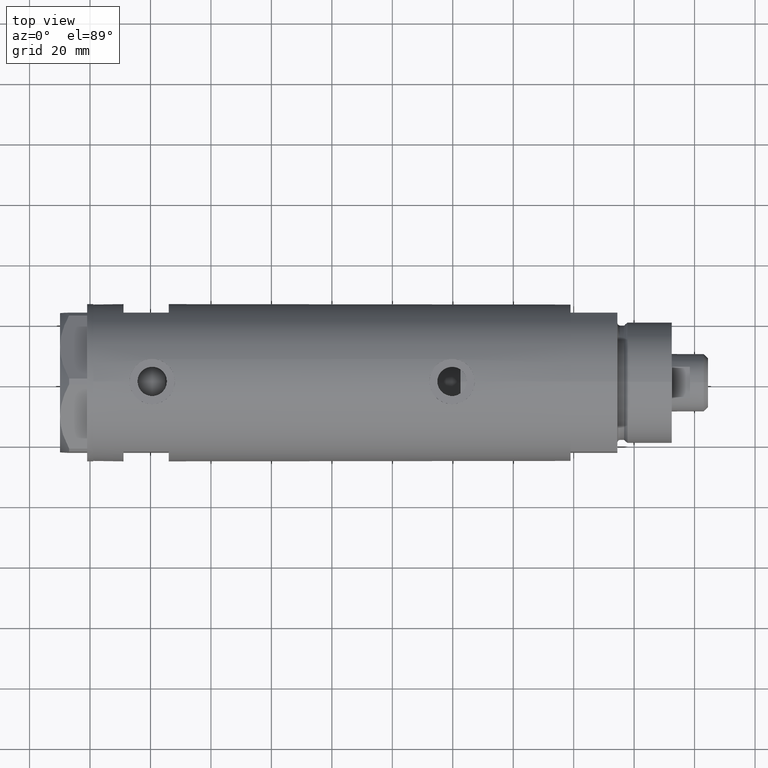
[diagram: clean part render]
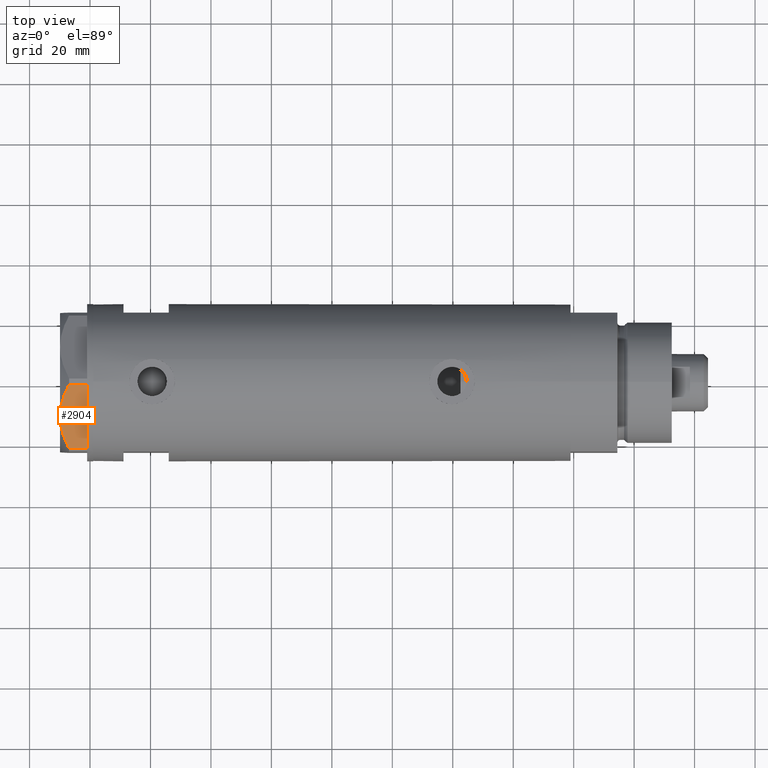
[diagram: same view with one face highlighted and labeled with its STEP entity id]
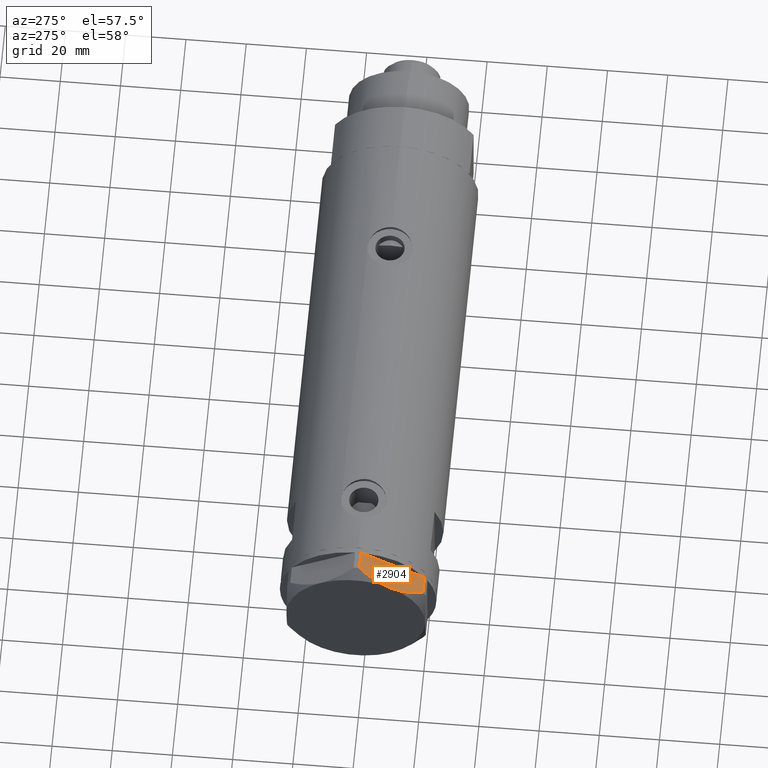
[diagram: same view with one face highlighted and labeled with its STEP entity id]
A machine part, top view. The second image highlights one B-rep face of the part: STEP entity #2904.
A second angle (auxiliary view) of the same face is appended — the face is thin or edge-on in the first view.
In plain terms, the highlighted planar face has unit normal (-0, 0.5, -0.866).
Its self-contained STEP definition (entity closure, byte-faithful):
#35 = VERTEX_POINT ( 'NONE', #6214 ) ;
#65 = CARTESIAN_POINT ( 'NONE',  ( -9.678244919010385416, -20.97037507344893115, 9.000000000000088818 ) ) ;
#191 = CARTESIAN_POINT ( 'NONE',  ( -1.799196345398571983, -25.51934588838179607, 6.431317509510369845 ) ) ;
#205 = CARTESIAN_POINT ( 'NONE',  ( -15.16323225988328538, -17.80361615569431777, 8.637313967156948991 ) ) ;
#357 = EDGE_CURVE ( 'NONE', #35, #3675, #6197, .T. ) ;
#395 = CARTESIAN_POINT ( 'NONE',  ( -22.99999999999990408, -13.27905619136147841, 0.000000000000000000 ) ) ;
#516 = LINE ( 'NONE', #4375, #2358 ) ;
#738 = CARTESIAN_POINT ( 'NONE',  ( -3.925137811031424562, -24.29193301091729396, 7.397272853992039821 ) ) ;
#751 = LINE ( 'NONE', #4642, #5000 ) ;
#798 = EDGE_LOOP ( 'NONE', ( #3123, #1444, #1362, #5884, #6136, #3929, #3480 ) ) ;
#810 = VECTOR ( 'NONE', #1326, 1000.000000000000000 ) ;
#1104 = CARTESIAN_POINT ( 'NONE',  ( -22.03005154776146313, -13.83905619136139364, 5.983800287807550689 ) ) ;
#1127 = AXIS2_PLACEMENT_3D ( 'NONE', #5069, #1709, #2156 ) ;
#1173 = CARTESIAN_POINT ( 'NONE',  ( -13.34348161667001698, -18.85424967941148822, 8.907842277728438063 ) ) ;
#1251 = CARTESIAN_POINT ( 'NONE',  ( -7.884645426990268824, -22.00591022298511490, 8.707651728477127762 ) ) ;
#1326 = DIRECTION ( 'NONE',  ( 0.8660254037844415942, -0.4999999999999950595, 0.000000000000000000 ) ) ;
#1362 = ORIENTED_EDGE ( 'NONE', *, *, #2986, .T. ) ;
#1444 = ORIENTED_EDGE ( 'NONE', *, *, #6026, .T. ) ;
#1523 = CARTESIAN_POINT ( 'NONE',  ( -0.9699484522404678843, -25.99811238272155123, 5.983800287808756835 ) ) ;
#1680 = CARTESIAN_POINT ( 'NONE',  ( -11.95865151389046588, -19.65378171203314395, 9.000000000000095923 ) ) ;
#1709 = DIRECTION ( 'NONE',  ( 0.4999999999999950595, 0.8660254037844415942, -0.000000000000000000 ) ) ;
#1753 = VECTOR ( 'NONE', #3539, 1000.000000000000000 ) ;
#1906 = CARTESIAN_POINT ( 'NONE',  ( -11.49999999999990585, -19.91858428704219364, 9.000000000000000000 ) ) ;
#2150 = CARTESIAN_POINT ( 'NONE',  ( -20.37350567916426058, -14.79546339452094017, 6.877782426143456362 ) ) ;
#2156 = DIRECTION ( 'NONE',  ( -0.8660254037844414832, 0.4999999999999950040, 0.000000000000000000 ) ) ;
#2164 = LINE ( 'NONE', #2517, #1753 ) ;
#2198 = EDGE_CURVE ( 'NONE', #3675, #4496, #4405, .T. ) ;
#2358 = VECTOR ( 'NONE', #5436, 1000.000000000000000 ) ;
#2431 = CARTESIAN_POINT ( 'NONE',  ( -0.9699484522383943208, -25.99811238272274494, 0.000000000000000000 ) ) ;
#2517 = CARTESIAN_POINT ( 'NONE',  ( -22.99999999999990408, -13.27905619136147841, 0.000000000000000000 ) ) ;
#2631 = CARTESIAN_POINT ( 'NONE',  ( -16.05322244309625290, -17.28978008384019915, 8.426899937603781865 ) ) ;
#2674 = DIRECTION ( 'NONE',  ( 0.8660254037844415942, -0.4999999999999950595, 0.000000000000000000 ) ) ;
#2904 = ADVANCED_FACE ( 'NONE', ( #4138 ), #3606, .F. ) ;
#2986 = EDGE_CURVE ( 'NONE', #4755, #4279, #6177, .T. ) ;
#3026 = CARTESIAN_POINT ( 'NONE',  ( -22.03005154776132102, -13.83905619136147536, 0.000000000000000000 ) ) ;
#3123 = ORIENTED_EDGE ( 'NONE', *, *, #357, .F. ) ;
#3139 = DIRECTION ( 'NONE',  ( 0.000000000000000000, 0.000000000000000000, 1.000000000000000000 ) ) ;
#3157 = CARTESIAN_POINT ( 'NONE',  ( -2.640413878808339110, -25.03366871902064261, 6.844201024439214187 ) ) ;
#3222 = EDGE_CURVE ( 'NONE', #3521, #4496, #751, .T. ) ;
#3480 = ORIENTED_EDGE ( 'NONE', *, *, #2198, .F. ) ;
#3521 = VERTEX_POINT ( 'NONE', #2431 ) ;
#3539 = DIRECTION ( 'NONE',  ( 0.8660254037844415942, -0.4999999999999950595, 0.000000000000000000 ) ) ;
#3596 = VECTOR ( 'NONE', #2674, 1000.000000000000000 ) ;
#3606 = PLANE ( 'NONE',  #1127 ) ;
#3675 = VERTEX_POINT ( 'NONE', #1906 ) ;
#3929 = ORIENTED_EDGE ( 'NONE', *, *, #3222, .T. ) ;
#4090 = CARTESIAN_POINT ( 'NONE',  ( -5.671686373603866294, -23.28356272816335348, 8.040681765829727823 ) ) ;
#4105 = CARTESIAN_POINT ( 'NONE',  ( -13.80210138309694301, -18.58946543380922378, 8.852712638955804181 ) ) ;
#4138 = FACE_OUTER_BOUND ( 'NONE', #798, .T. ) ;
#4214 = CARTESIAN_POINT ( 'NONE',  ( -21.99999999999998224, -13.85640646055105485, 0.000000000000000000 ) ) ;
#4279 = VERTEX_POINT ( 'NONE', #4214 ) ;
#4375 = CARTESIAN_POINT ( 'NONE',  ( -22.03005154776132102, -13.83905619136147536, 9.000000000000000000 ) ) ;
#4405 = B_SPLINE_CURVE_WITH_KNOTS ( 'NONE', 3,
 ( #4436, #65, #1251, #4090, #5113, #4634, #738, #3157, #191, #5564 ),
 .UNSPECIFIED., .F., .F.,
 ( 4, 2, 2, 2, 4 ),
 ( 0.01376519981810312397, 0.01998941321701459134, 0.02154546656674245428, 0.02310151991647032069, 0.02621362661592604310 ),
 .UNSPECIFIED. ) ;
#4436 = CARTESIAN_POINT ( 'NONE',  ( -11.49999999999990585, -19.91858428704219364, 9.000000000000000000 ) ) ;
#4496 = VERTEX_POINT ( 'NONE', #1523 ) ;
#4583 = CARTESIAN_POINT ( 'NONE',  ( -11.49999999999990585, -19.91858428704219364, 9.000000000000000000 ) ) ;
#4618 = EDGE_CURVE ( 'NONE', #5592, #3521, #2164, .T. ) ;
#4634 = CARTESIAN_POINT ( 'NONE',  ( -4.357207709417335373, -24.04247733877546267, 7.570552255230290406 ) ) ;
#4642 = CARTESIAN_POINT ( 'NONE',  ( -0.9699484522383977625, -25.99811238272274494, 9.000000000000000000 ) ) ;
#4742 = LINE ( 'NONE', #5166, #3596 ) ;
#4755 = VERTEX_POINT ( 'NONE', #3026 ) ;
#4854 = EDGE_CURVE ( 'NONE', #4279, #5592, #4742, .T. ) ;
#5000 = VECTOR ( 'NONE', #3139, 1000.000000000000000 ) ;
#5066 = CARTESIAN_POINT ( 'NONE',  ( -18.67981377008999644, -15.77331687414923778, 7.629374868826104716 ) ) ;
#5069 = CARTESIAN_POINT ( 'NONE',  ( -22.99999999999990408, -13.27905619136147841, 9.000000000000000000 ) ) ;
#5113 = CARTESIAN_POINT ( 'NONE',  ( -5.229981517799206614, -23.53858114556453529, 7.892128867758890998 ) ) ;
#5166 = CARTESIAN_POINT ( 'NONE',  ( -22.99999999999990408, -13.27905619136147841, 0.000000000000000000 ) ) ;
#5436 = DIRECTION ( 'NONE',  ( -0.000000000000000000, 0.000000000000000000, -1.000000000000000000 ) ) ;
#5546 = CARTESIAN_POINT ( 'NONE',  ( -0.9999999999997406519, -25.98076211353317433, 0.000000000000000000 ) ) ;
#5564 = CARTESIAN_POINT ( 'NONE',  ( -0.9699484522404678843, -25.99811238272155123, 5.983800287808756835 ) ) ;
#5592 = VERTEX_POINT ( 'NONE', #5546 ) ;
#5884 = ORIENTED_EDGE ( 'NONE', *, *, #4854, .T. ) ;
#6026 = EDGE_CURVE ( 'NONE', #35, #4755, #516, .T. ) ;
#6061 = CARTESIAN_POINT ( 'NONE',  ( -12.41906678023023325, -19.38796083407287085, 8.981686407609506873 ) ) ;
#6136 = ORIENTED_EDGE ( 'NONE', *, *, #4618, .T. ) ;
#6177 = LINE ( 'NONE', #395, #810 ) ;
#6197 = B_SPLINE_CURVE_WITH_KNOTS ( 'NONE', 3,
 ( #1104, #2150, #5066, #2631, #205, #4105, #1173, #6061, #1680, #4583 ),
 .UNSPECIFIED., .F., .F.,
 ( 4, 2, 2, 2, 4 ),
 ( 0.001228959670438514989, 0.007497079744270818830, 0.01063113978118697227, 0.01219816979964504812, 0.01376519981810312397 ),
 .UNSPECIFIED. ) ;
#6214 = CARTESIAN_POINT ( 'NONE',  ( -22.03005154776146313, -13.83905619136139364, 5.983800287807550689 ) ) ;